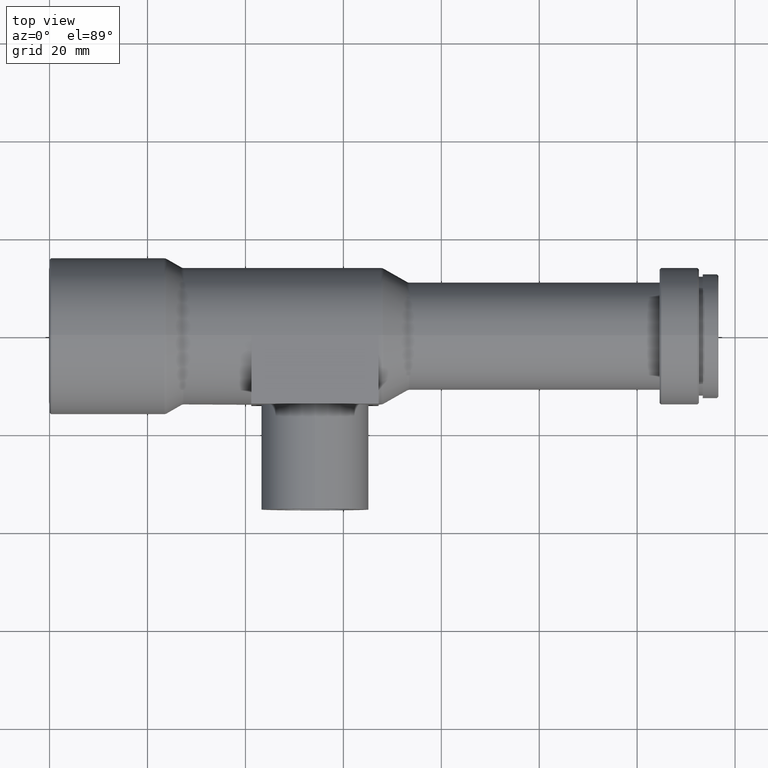
[diagram: clean part render]
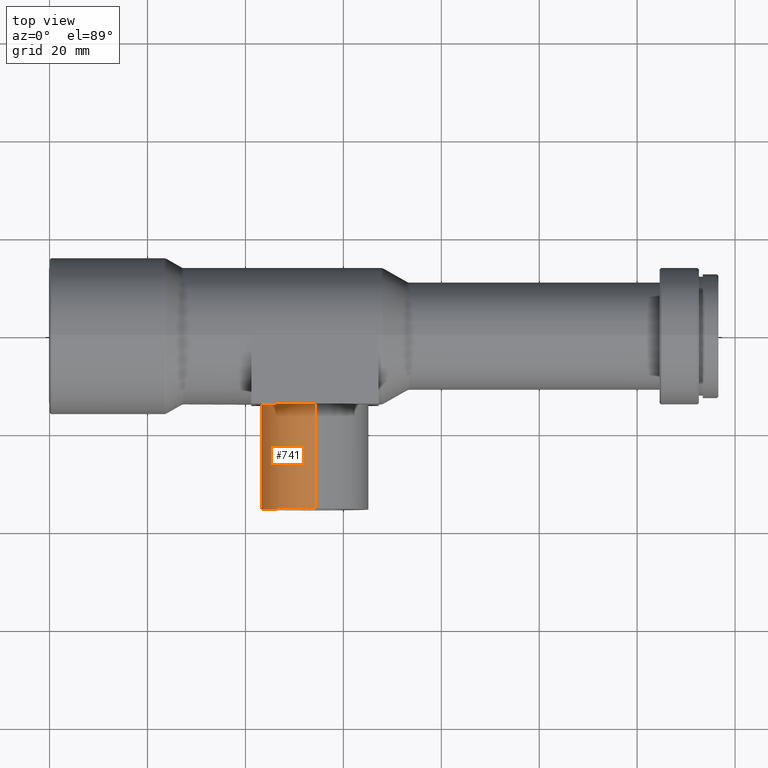
[diagram: same view with one face highlighted and labeled with its STEP entity id]
A machine part, top view. The second image highlights one B-rep face of the part: STEP entity #741.
In plain terms, the highlighted cylindrical surface (partial cylindrical patch) has radius 11 mm, axis along (-0, 1, -0).
Its self-contained STEP definition (entity closure, byte-faithful):
#25 = AXIS2_PLACEMENT_3D ( 'NONE', #1388, #722, #131 ) ;
#35 = ORIENTED_EDGE ( 'NONE', *, *, #990, .F. ) ;
#66 = CIRCLE ( 'NONE', #1243, 10.99999999999999600 ) ;
#96 = ORIENTED_EDGE ( 'NONE', *, *, #108, .T. ) ;
#108 = EDGE_CURVE ( 'NONE', #339, #617, #1170, .T. ) ;
#129 = LINE ( 'NONE', #240, #536 ) ;
#131 = DIRECTION ( 'NONE',  ( 0.0000000000000000000, 0.0000000000000000000, 1.000000000000000000 ) ) ;
#132 = AXIS2_PLACEMENT_3D ( 'NONE', #1240, #572, #323 ) ;
#240 = CARTESIAN_POINT ( 'NONE',  ( 54.20000000000001000, 0.0000000000000000000, -10.99999999999999600 ) ) ;
#250 = CARTESIAN_POINT ( 'NONE',  ( 54.20000000000001000, -14.00000000000000200, -10.99999999999999600 ) ) ;
#258 = LINE ( 'NONE', #611, #330 ) ;
#323 = DIRECTION ( 'NONE',  ( 0.0000000000000000000, 0.0000000000000000000, 1.000000000000000000 ) ) ;
#330 = VECTOR ( 'NONE', #499, 1000.000000000000000 ) ;
#339 = VERTEX_POINT ( 'NONE', #935 ) ;
#382 = VERTEX_POINT ( 'NONE', #250 ) ;
#456 = DIRECTION ( 'NONE',  ( -0.0000000000000000000, 1.000000000000000000, -0.0000000000000000000 ) ) ;
#476 = CARTESIAN_POINT ( 'NONE',  ( 54.20000000000001000, -14.00000000000000200, 0.0000000000000000000 ) ) ;
#499 = DIRECTION ( 'NONE',  ( -0.0000000000000000000, 1.000000000000000000, -0.0000000000000000000 ) ) ;
#536 = VECTOR ( 'NONE', #456, 1000.000000000000000 ) ;
#545 = ORIENTED_EDGE ( 'NONE', *, *, #771, .T. ) ;
#555 = CARTESIAN_POINT ( 'NONE',  ( 54.20000000000001000, -35.39999999999999900, 10.99999999999999600 ) ) ;
#572 = DIRECTION ( 'NONE',  ( -0.0000000000000000000, 1.000000000000000000, -0.0000000000000000000 ) ) ;
#593 = DIRECTION ( 'NONE',  ( -0.0000000000000000000, 1.000000000000000000, -0.0000000000000000000 ) ) ;
#611 = CARTESIAN_POINT ( 'NONE',  ( 54.20000000000001000, 0.0000000000000000000, 10.99999999999999600 ) ) ;
#617 = VERTEX_POINT ( 'NONE', #555 ) ;
#676 = EDGE_LOOP ( 'NONE', ( #944, #96, #545, #35 ) ) ;
#684 = CYLINDRICAL_SURFACE ( 'NONE', #25, 10.99999999999999600 ) ;
#696 = VERTEX_POINT ( 'NONE', #1256 ) ;
#722 = DIRECTION ( 'NONE',  ( -0.0000000000000000000, 1.000000000000000000, -0.0000000000000000000 ) ) ;
#741 = ADVANCED_FACE ( 'NONE', ( #1090 ), #684, .T. ) ;
#771 = EDGE_CURVE ( 'NONE', #617, #696, #258, .T. ) ;
#864 = EDGE_CURVE ( 'NONE', #339, #382, #129, .T. ) ;
#935 = CARTESIAN_POINT ( 'NONE',  ( 54.20000000000001000, -35.39999999999999900, -10.99999999999999600 ) ) ;
#944 = ORIENTED_EDGE ( 'NONE', *, *, #864, .F. ) ;
#990 = EDGE_CURVE ( 'NONE', #382, #696, #66, .T. ) ;
#1090 = FACE_OUTER_BOUND ( 'NONE', #676, .T. ) ;
#1167 = DIRECTION ( 'NONE',  ( 0.0000000000000000000, 0.0000000000000000000, 1.000000000000000000 ) ) ;
#1170 = CIRCLE ( 'NONE', #132, 10.99999999999999600 ) ;
#1240 = CARTESIAN_POINT ( 'NONE',  ( 54.20000000000001000, -35.39999999999999900, 0.0000000000000000000 ) ) ;
#1243 = AXIS2_PLACEMENT_3D ( 'NONE', #476, #593, #1167 ) ;
#1256 = CARTESIAN_POINT ( 'NONE',  ( 54.20000000000001000, -14.00000000000000200, 10.99999999999999600 ) ) ;
#1388 = CARTESIAN_POINT ( 'NONE',  ( 54.20000000000001000, 0.0000000000000000000, 0.0000000000000000000 ) ) ;